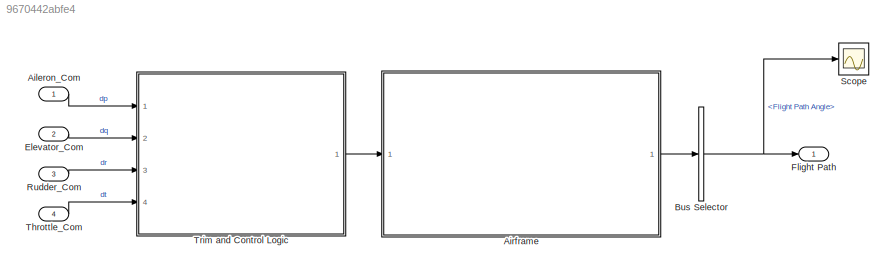
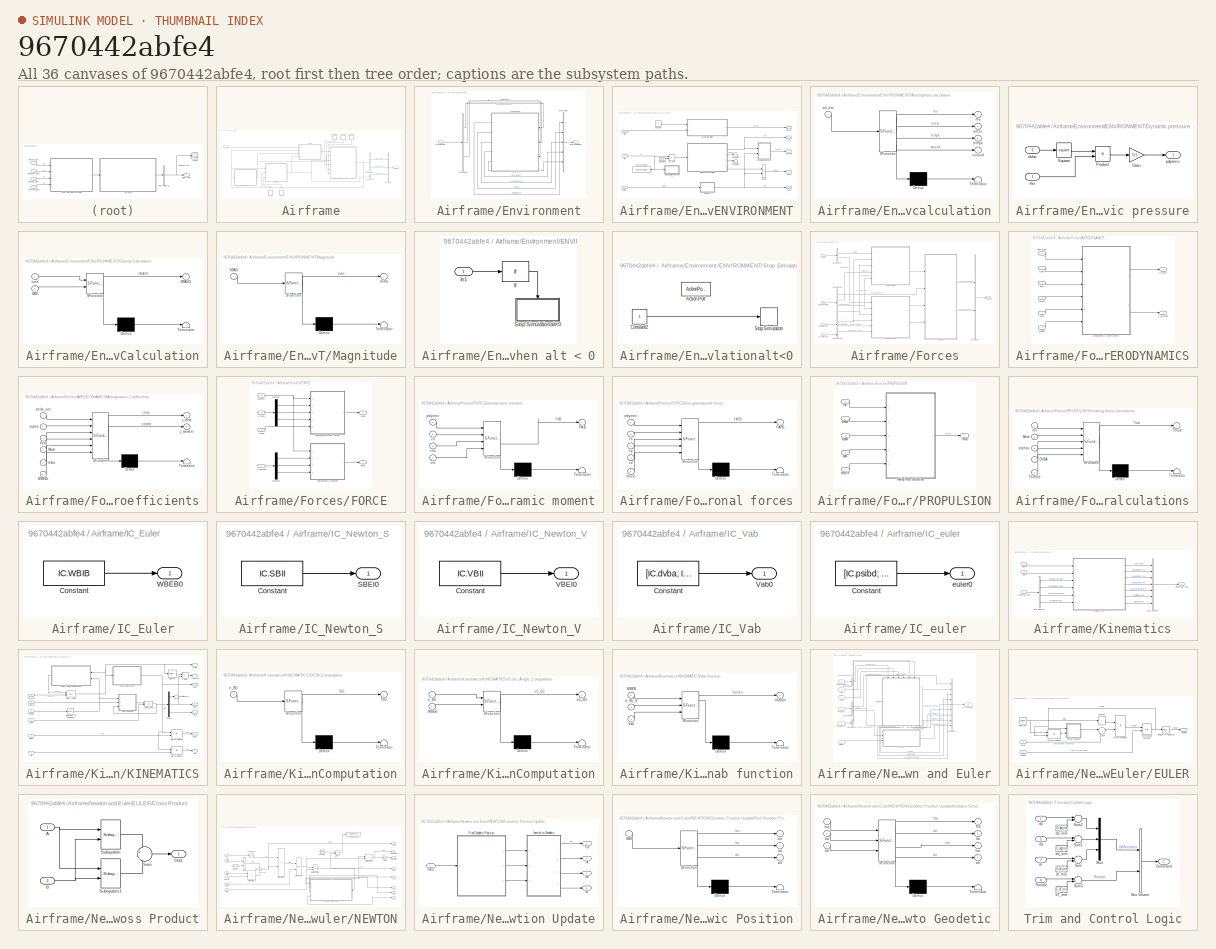
[diagram: thumbnail index - all 36 canvases of the model, root first then tree order]
MODEL slx_9670442abfe4
KIND model
CONFIG AbsTol = auto
CONFIG EnableMultiTasking = off
CONFIG FixedStep = 0.01
CONFIG MaxStep = auto
CONFIG MinStep = auto
CONFIG RelTol = 1e-3
CONFIG SampleTimeConstraint = Unconstrained
CONFIG Solver = ode4
CONFIG SolverName = ode4
CONFIG StartTime = 0.0
CONFIG StopTime = 30
BLOCK [Inport] Aileron_Com
  OutDataTypeStr = double
BLOCK [SubSystem] Airframe
  Ports = [1, 1]
BLOCK [BusCreator] Airframe/Bus Creator
  DisplayOption = bar
  InheritFromInputs = on
  Inputs = 3
  Ports = [3, 1]
BLOCK [BusSelector] Airframe/Bus Selector
  OutputSignals = Inertial Acceleration (FRD),Earth Relative Angular Rate (FRD)
  Ports = [1, 2]
BLOCK [BusSelector] Airframe/Bus Selector1
  OutputSignals = Flight Path Angle
  Ports = [1, 1]
BLOCK [SubSystem] Airframe/Environment
  Ports = [1, 1]
BLOCK [BusCreator] Airframe/Environment/Bus Creator
  DisplayOption = bar
  InheritFromInputs = on
  Inputs = 5
  Ports = [5, 1]
BLOCK [BusSelector] Airframe/Environment/Bus Selector
  OutputSignals = Geogrpahic Velocity [NED],Geodetic Altitude,Inertial Position
  Ports = [1, 3]
BLOCK [Inport] Airframe/Environment/Dynamics Bus
BLOCK [SubSystem] Airframe/Environment/ENVIRONMENT
  Ports = [3, 5]
BLOCK [SubSystem] Airframe/Environment/ENVIRONMENT/Atmosphere calculation
  ErrorFcn = Stateflow.Translate.translate
  PermitHierarchicalResolution = ExplicitOnly
  Ports = [1, 4]
  Priority = 2
  SFBlockType = MATLAB Function
  TreatAsAtomicUnit = on
BLOCK [Demux] Airframe/Environment/ENVIRONMENT/Atmosphere calculation/ Demux 
  Outputs = 1
  Ports = [1, 1]
BLOCK [S-Function] Airframe/Environment/ENVIRONMENT/Atmosphere calculation/ SFunction 
  EnableBusSupport = on
  FunctionName = sf_sfun
  PortCounts = [1 5]
  Ports = [1, 5]
  SFcnIsStateOwnerBlock = off
  SFunctionDeploymentMode = off
  Tag = Stateflow S-Function Trim 18
BLOCK [Terminator] Airframe/Environment/ENVIRONMENT/Atmosphere calculation/ Terminator 
BLOCK [Inport] Airframe/Environment/ENVIRONMENT/Atmosphere calculation/alt_km
BLOCK [Outport] Airframe/Environment/ENVIRONMENT/Atmosphere calculation/press
  Port = 2
BLOCK [Outport] Airframe/Environment/ENVIRONMENT/Atmosphere calculation/rho
BLOCK [Outport] Airframe/Environment/ENVIRONMENT/Atmosphere calculation/tempk
  Port = 3
BLOCK [Outport] Airframe/Environment/ENVIRONMENT/Atmosphere calculation/vsound
  Port = 4
BLOCK [Constant] Airframe/Environment/ENVIRONMENT/Constant
  Value = 0
BLOCK [Constant] Airframe/Environment/ENVIRONMENT/Constant1
  Value = 1000
BLOCK [SubSystem] Airframe/Environment/ENVIRONMENT/Dynamic pressure
  Ports = [2, 1]
BLOCK [Gain] Airframe/Environment/ENVIRONMENT/Dynamic pressure/Gain
  Gain = 0.5
BLOCK [Product] Airframe/Environment/ENVIRONMENT/Dynamic pressure/Product
  Ports = [2, 1]
BLOCK [Math] Airframe/Environment/ENVIRONMENT/Dynamic pressure/Square
  Operator = square
  Ports = [1, 1]
BLOCK [Inport] Airframe/Environment/ENVIRONMENT/Dynamic pressure/dvba
  Port = 2
BLOCK [Outport] Airframe/Environment/ENVIRONMENT/Dynamic pressure/pdynmc
BLOCK [Inport] Airframe/Environment/ENVIRONMENT/Dynamic pressure/rho
BLOCK [Outport] Airframe/Environment/ENVIRONMENT/GRAVG
BLOCK [SubSystem] Airframe/Environment/ENVIRONMENT/Gravity Calculation
  ErrorFcn = Stateflow.Translate.translate
  PermitHierarchicalResolution = ExplicitOnly
  Ports = [2, 1]
  Priority = 1
  SFBlockType = MATLAB Function
  TreatAsAtomicUnit = on
BLOCK [Demux] Airframe/Environment/ENVIRONMENT/Gravity Calculation/ Demux 
  Outputs = 1
  Ports = [1, 1]
BLOCK [S-Function] Airframe/Environment/ENVIRONMENT/Gravity Calculation/ SFunction 
  EnableBusSupport = on
  FunctionName = sf_sfun
  Parameters = Sim
  PortCounts = [2 2]
  Ports = [2, 2]
  SFcnIsStateOwnerBlock = off
  SFunctionDeploymentMode = off
  Tag = Stateflow S-Function Trim 21
BLOCK [Terminator] Airframe/Environment/ENVIRONMENT/Gravity Calculation/ Terminator 
BLOCK [Outport] Airframe/Environment/ENVIRONMENT/Gravity Calculation/GRAVG
BLOCK [Inport] Airframe/Environment/ENVIRONMENT/Gravity Calculation/SBII
  Port = 2
BLOCK [Inport] Airframe/Environment/ENVIRONMENT/Gravity Calculation/time
BLOCK [SubSystem] Airframe/Environment/ENVIRONMENT/Magnitude
  ErrorFcn = Stateflow.Translate.translate
  PermitHierarchicalResolution = ExplicitOnly
  Ports = [1, 1]
  SFBlockType = MATLAB Function
  TreatAsAtomicUnit = on
BLOCK [Demux] Airframe/Environment/ENVIRONMENT/Magnitude/ Demux 
  Outputs = 1
  Ports = [1, 1]
BLOCK [S-Function] Airframe/Environment/ENVIRONMENT/Magnitude/ SFunction 
  EnableBusSupport = on
  FunctionName = sf_sfun
  PortCounts = [1 2]
  Ports = [1, 2]
  SFcnIsStateOwnerBlock = off
  SFunctionDeploymentMode = off
  Tag = Stateflow S-Function Trim 1
BLOCK [Terminator] Airframe/Environment/ENVIRONMENT/Magnitude/ Terminator 
BLOCK [Inport] Airframe/Environment/ENVIRONMENT/Magnitude/VBAD
BLOCK [Outport] Airframe/Environment/ENVIRONMENT/Magnitude/dvba
BLOCK [Inport] Airframe/Environment/ENVIRONMENT/SBII
  Port = 3
BLOCK [SubSystem] Airframe/Environment/ENVIRONMENT/Stop Simulation when alt < 0
  Ports = [1]
BLOCK [If] Airframe/Environment/ENVIRONMENT/Stop Simulation when alt < 0/If
  IfExpression = u1 <= 25
  Ports = [1, 1]
  ShowElse = off
BLOCK [Inport] Airframe/Environment/ENVIRONMENT/Stop Simulation when alt < 0/In1
BLOCK [SubSystem] Airframe/Environment/ENVIRONMENT/Stop Simulation when alt < 0/Stop Simulationalt<0
  Ports = [0, 0, 0, 0, 0, 0, 0, 1]
  TreatAsAtomicUnit = on
BLOCK [ActionPort] Airframe/Environment/ENVIRONMENT/Stop Simulation when alt < 0/Stop Simulationalt<0/Action Port
BLOCK [Constant] Airframe/Environment/ENVIRONMENT/Stop Simulation when alt < 0/Stop Simulationalt<0/Constant2
BLOCK [Stop] Airframe/Environment/ENVIRONMENT/Stop Simulation when alt < 0/Stop Simulationalt<0/Stop Simulation
BLOCK [Terminator] Airframe/Environment/ENVIRONMENT/Terminator
BLOCK [Terminator] Airframe/Environment/ENVIRONMENT/Terminator2
BLOCK [ToWorkspace] Airframe/Environment/ENVIRONMENT/To Workspace
  FixptAsFi = on
  MaxDataPoints = inf
  Ports = [1]
  SampleTime = -1
  VariableName = h
BLOCK [Inport] Airframe/Environment/ENVIRONMENT/VBED
BLOCK [Inport] Airframe/Environment/ENVIRONMENT/alt
  Port = 2
BLOCK [Outport] Airframe/Environment/ENVIRONMENT/dvba
  Port = 5
BLOCK [Product] Airframe/Environment/ENVIRONMENT/dvba//a
  Inputs = /*
  Ports = [2, 1]
BLOCK [Product] Airframe/Environment/ENVIRONMENT/m --> km
  Inputs = */
  Ports = [2, 1]
BLOCK [Outport] Airframe/Environment/ENVIRONMENT/pdynmc
  Port = 3
BLOCK [Outport] Airframe/Environment/ENVIRONMENT/rho
  Port = 2
BLOCK [Outport] Airframe/Environment/ENVIRONMENT/vmach
  Port = 4
BLOCK [Outport] Airframe/Environment/Environment Bus
BLOCK [SubSystem] Airframe/Forces
  Ports = [4, 1]
BLOCK [SubSystem] Airframe/Forces/AERODYNAMICS
  Ports = [6, 2]
BLOCK [SubSystem] Airframe/Forces/AERODYNAMICS/Aerodynamic Coefficients
  ErrorFcn = Stateflow.Translate.translate
  PermitHierarchicalResolution = ExplicitOnly
  Ports = [6, 2]
  SFBlockType = MATLAB Function
  TreatAsAtomicUnit = on
BLOCK [Demux] Airframe/Forces/AERODYNAMICS/Aerodynamic Coefficients/ Demux 
  Outputs = 1
  Ports = [1, 1]
BLOCK [S-Function] Airframe/Forces/AERODYNAMICS/Aerodynamic Coefficients/ SFunction 
  EnableBusSupport = on
  FunctionName = sf_sfun
  Parameters = Data,Sim
  PortCounts = [6 3]
  Ports = [6, 3]
  SFcnIsStateOwnerBlock = off
  SFunctionDeploymentMode = off
  Tag = Stateflow S-Function Trim 25
BLOCK [Terminator] Airframe/Forces/AERODYNAMICS/Aerodynamic Coefficients/ Terminator 
BLOCK [Inport] Airframe/Forces/AERODYNAMICS/Aerodynamic Coefficients/Mach
  Port = 4
BLOCK [Inport] Airframe/Forces/AERODYNAMICS/Aerodynamic Coefficients/WBEBx
  Port = 6
BLOCK [Inport] Airframe/Forces/AERODYNAMICS/Aerodynamic Coefficients/alpha
  Port = 2
BLOCK [Inport] Airframe/Forces/AERODYNAMICS/Aerodynamic Coefficients/beta
  Port = 3
BLOCK [Outport] Airframe/Forces/AERODYNAMICS/Aerodynamic Coefficients/c_force
BLOCK [Outport] Airframe/Forces/AERODYNAMICS/Aerodynamic Coefficients/c_moment
  Port = 2
BLOCK [Inport] Airframe/Forces/AERODYNAMICS/Aerodynamic Coefficients/delta_aer
BLOCK [Inport] Airframe/Forces/AERODYNAMICS/Aerodynamic Coefficients/dvba
  Port = 5
BLOCK [Inport] Airframe/Forces/AERODYNAMICS/WBEBx
  Port = 6
BLOCK [Inport] Airframe/Forces/AERODYNAMICS/alpha
  Port = 4
BLOCK [Inport] Airframe/Forces/AERODYNAMICS/beta
  Port = 5
BLOCK [Outport] Airframe/Forces/AERODYNAMICS/c_force
  PortDimensions = [3 1]
  VarSizeSig = No
BLOCK [Outport] Airframe/Forces/AERODYNAMICS/c_moment
  Port = 2
  PortDimensions = [3 1]
  VarSizeSig = No
BLOCK [Inport] Airframe/Forces/AERODYNAMICS/delta_aer
BLOCK [Inport] Airframe/Forces/AERODYNAMICS/dvba
  Port = 3
BLOCK [Inport] Airframe/Forces/AERODYNAMICS/vmach
  Port = 2
BLOCK [BusCreator] Airframe/Forces/Bus Creator
  DisplayOption = bar
  InheritFromInputs = on
  Inputs = 2
  Ports = [2, 1]
BLOCK [BusSelector] Airframe/Forces/Bus Selector
  OutputSignals = Throttle,Deflections
  Ports = [1, 2]
BLOCK [BusSelector] Airframe/Forces/Bus Selector1
  OutputSignals = Dynamic Pressure,Air Density,Mach Number,True Airspeed
  Ports = [1, 4]
BLOCK [BusSelector] Airframe/Forces/Bus Selector2
  OutputSignals = Earth Relative Angular Rate (FRD)
  Ports = [1, 1]
BLOCK [BusSelector] Airframe/Forces/Bus Selector3
  OutputSignals = Angle of Attack (rad),Side slip angle (rad)
  Ports = [1, 2]
BLOCK [Inport] Airframe/Forces/Dynamics Bus
  Port = 2
BLOCK [Inport] Airframe/Forces/Environment Bus
  Port = 3
BLOCK [SubSystem] Airframe/Forces/FORCE
  Ports = [4, 2]
BLOCK [Demux] Airframe/Forces/FORCE/Demux
  Outputs = 3
  Ports = [1, 3]
BLOCK [Demux] Airframe/Forces/FORCE/Demux1
  Outputs = 3
  Ports = [1, 3]
BLOCK [Outport] Airframe/Forces/FORCE/FAPB
  Port = 2
BLOCK [Outport] Airframe/Forces/FORCE/FMB
BLOCK [SubSystem] Airframe/Forces/FORCE/aerodynamic moment
  ErrorFcn = Stateflow.Translate.translate
  PermitHierarchicalResolution = ExplicitOnly
  Ports = [4, 1]
  SFBlockType = MATLAB Function
  TreatAsAtomicUnit = on
BLOCK [Demux] Airframe/Forces/FORCE/aerodynamic moment/ Demux 
  Outputs = 1
  Ports = [1, 1]
BLOCK [S-Function] Airframe/Forces/FORCE/aerodynamic moment/ SFunction 
  EnableBusSupport = on
  FunctionName = sf_sfun
  Parameters = Sim
  PortCounts = [4 2]
  Ports = [4, 2]
  SFcnIsStateOwnerBlock = off
  SFunctionDeploymentMode = off
  Tag = Stateflow S-Function Trim 26
BLOCK [Terminator] Airframe/Forces/FORCE/aerodynamic moment/ Terminator 
BLOCK [Outport] Airframe/Forces/FORCE/aerodynamic moment/FMB
BLOCK [Inport] Airframe/Forces/FORCE/aerodynamic moment/cll
  Port = 2
BLOCK [Inport] Airframe/Forces/FORCE/aerodynamic moment/clm
  Port = 3
BLOCK [Inport] Airframe/Forces/FORCE/aerodynamic moment/cln
  Port = 4
BLOCK [Inport] Airframe/Forces/FORCE/aerodynamic moment/pdynmc
BLOCK [Inport] Airframe/Forces/FORCE/c_force
  Port = 3
  PortDimensions = [3 1]
  VarSizeSig = No
BLOCK [Inport] Airframe/Forces/FORCE/c_moment
  Port = 4
  PortDimensions = [3 1]
  VarSizeSig = No
BLOCK [SubSystem] Airframe/Forces/FORCE/non-gravitational forces
  ErrorFcn = Stateflow.Translate.translate
  PermitHierarchicalResolution = ExplicitOnly
  Ports = [5, 1]
  SFBlockType = MATLAB Function
  TreatAsAtomicUnit = on
BLOCK [Demux] Airframe/Forces/FORCE/non-gravitational forces/ Demux 
  Outputs = 1
  Ports = [1, 1]
BLOCK [S-Function] Airframe/Forces/FORCE/non-gravitational forces/ SFunction 
  EnableBusSupport = on
  FunctionName = sf_sfun
  Parameters = Sim
  PortCounts = [5 2]
  Ports = [5, 2]
  SFcnIsStateOwnerBlock = off
  SFunctionDeploymentMode = off
  Tag = Stateflow S-Function Trim 27
BLOCK [Terminator] Airframe/Forces/FORCE/non-gravitational forces/ Terminator 
BLOCK [Outport] Airframe/Forces/FORCE/non-gravitational forces/FAPB
BLOCK [Inport] Airframe/Forces/FORCE/non-gravitational forces/cx
  Port = 2
BLOCK [Inport] Airframe/Forces/FORCE/non-gravitational forces/cy
  Port = 3
BLOCK [Inport] Airframe/Forces/FORCE/non-gravitational forces/cz
  Port = 4
BLOCK [Inport] Airframe/Forces/FORCE/non-gravitational forces/pdynmc
BLOCK [Inport] Airframe/Forces/FORCE/non-gravitational forces/thrust
  Port = 5
BLOCK [Inport] Airframe/Forces/FORCE/pdynmc
  Port = 2
BLOCK [Inport] Airframe/Forces/FORCE/thrust
BLOCK [Outport] Airframe/Forces/Force Bus
BLOCK [Inport] Airframe/Forces/Input Bus
BLOCK [Inport] Airframe/Forces/Kinematics Bus
  Port = 4
BLOCK [SubSystem] Airframe/Forces/PROPULSION
  Ports = [5, 1]
BLOCK [Inport] Airframe/Forces/PROPULSION/alphax
  Port = 2
BLOCK [Inport] Airframe/Forces/PROPULSION/dvba
  Port = 3
BLOCK [SubSystem] Airframe/Forces/PROPULSION/making thrust calculations
  ErrorFcn = Stateflow.Translate.translate
  PermitHierarchicalResolution = ExplicitOnly
  Ports = [5, 1]
  SFBlockType = MATLAB Function
  TreatAsAtomicUnit = on
BLOCK [Demux] Airframe/Forces/PROPULSION/making thrust calculations/ Demux 
  Outputs = 1
  Ports = [1, 1]
BLOCK [S-Function] Airframe/Forces/PROPULSION/making thrust calculations/ SFunction 
  EnableBusSupport = on
  FunctionName = sf_sfun
  Parameters = Data,Sim
  PortCounts = [5 2]
  Ports = [5, 2]
  SFcnIsStateOwnerBlock = off
  SFunctionDeploymentMode = off
  Tag = Stateflow S-Function Trim 28
BLOCK [Terminator] Airframe/Forces/PROPULSION/making thrust calculations/ Terminator 
BLOCK [Inport] Airframe/Forces/PROPULSION/making thrust calculations/DVBA
  Port = 4
BLOCK [Inport] Airframe/Forces/PROPULSION/making thrust calculations/Mach
  Port = 2
BLOCK [Inport] Airframe/Forces/PROPULSION/making thrust calculations/Throttle
  Port = 5
BLOCK [Outport] Airframe/Forces/PROPULSION/making thrust calculations/Thrust
BLOCK [Inport] Airframe/Forces/PROPULSION/making thrust calculations/alphax
  Port = 3
BLOCK [Inport] Airframe/Forces/PROPULSION/making thrust calculations/rho
BLOCK [Inport] Airframe/Forces/PROPULSION/rho
  Port = 4
BLOCK [Inport] Airframe/Forces/PROPULSION/throttle
BLOCK [Outport] Airframe/Forces/PROPULSION/thrust
BLOCK [Inport] Airframe/Forces/PROPULSION/vmach
  Port = 5
BLOCK [SubSystem] Airframe/IC_Euler
  Ports = [0, 1]
BLOCK [Constant] Airframe/IC_Euler/Constant
  SampleTime = Sim.sample_time
  Value = IC.WBIB
BLOCK [Outport] Airframe/IC_Euler/WBEB0
BLOCK [SubSystem] Airframe/IC_Newton_S
  Ports = [0, 1]
BLOCK [Constant] Airframe/IC_Newton_S/Constant
  SampleTime = Sim.sample_time
  Value = IC.SBII
BLOCK [Outport] Airframe/IC_Newton_S/SBEI0
BLOCK [SubSystem] Airframe/IC_Newton_V
  Ports = [0, 1]
BLOCK [Constant] Airframe/IC_Newton_V/Constant
  SampleTime = Sim.sample_time
  Value = IC.VBII
BLOCK [Outport] Airframe/IC_Newton_V/VBEI0
BLOCK [SubSystem] Airframe/IC_Vab
  Ports = [0, 1]
BLOCK [Constant] Airframe/IC_Vab/Constant
  SampleTime = Sim.sample_time
  Value = [IC.dvba; IC.alpha; 0]
  VectorParams1D = off
BLOCK [Outport] Airframe/IC_Vab/Vab0
BLOCK [SubSystem] Airframe/IC_euler
  Ports = [0, 1]
BLOCK [Constant] Airframe/IC_euler/Constant
  SampleTime = Sim.sample_time
  Value = [IC.psibd; IC.thtbd; IC.phibd]
  VectorParams1D = off
BLOCK [Outport] Airframe/IC_euler/euler0
BLOCK [Inport] Airframe/Input Bus
BLOCK [SubSystem] Airframe/Kinematics
  Ports = [3, 1]
BLOCK [BusCreator] Airframe/Kinematics/Bus Creator
  DisplayOption = bar
  InheritFromInputs = on
  Inputs = 7
  Ports = [7, 1]
BLOCK [BusSelector] Airframe/Kinematics/Bus Selector
  OutputSignals = Inertial Acceleration (FRD),Earth Relative Angular Rate (FRD),Geogrpahic Velocity [NED],Inertial to Geodetic TM
  Ports = [1, 4]
BLOCK [Inport] Airframe/Kinematics/Dynamics Bus
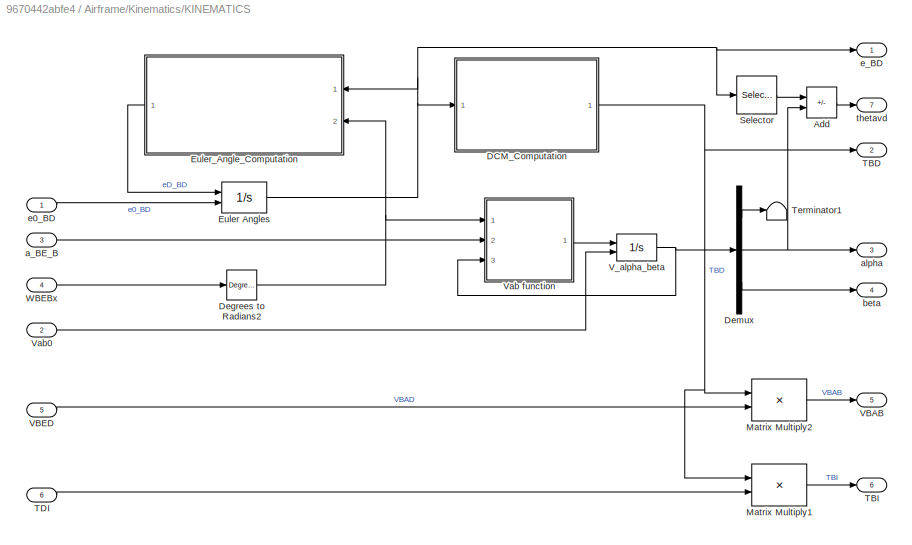
BLOCK [SubSystem] Airframe/Kinematics/KINEMATICS
  Ports = [6, 7]
BLOCK [Sum] Airframe/Kinematics/KINEMATICS/Add
  IconShape = rectangular
  Inputs = +-
  Ports = [2, 1]
BLOCK [SubSystem] Airframe/Kinematics/KINEMATICS/DCM_Computation
  ErrorFcn = Stateflow.Translate.translate
  PermitHierarchicalResolution = ExplicitOnly
  Ports = [1, 1]
  SFBlockType = MATLAB Function
  TreatAsAtomicUnit = on
BLOCK [Demux] Airframe/Kinematics/KINEMATICS/DCM_Computation/ Demux 
  Outputs = 1
  Ports = [1, 1]
BLOCK [S-Function] Airframe/Kinematics/KINEMATICS/DCM_Computation/ SFunction 
  EnableBusSupport = on
  FunctionName = sf_sfun
  PortCounts = [1 2]
  Ports = [1, 2]
  SFcnIsStateOwnerBlock = off
  SFunctionDeploymentMode = off
  Tag = Stateflow S-Function Trim 22
BLOCK [Terminator] Airframe/Kinematics/KINEMATICS/DCM_Computation/ Terminator 
BLOCK [Outport] Airframe/Kinematics/KINEMATICS/DCM_Computation/TBD
  VectorParamsAs1DForOutWhenUnconnected = off
BLOCK [Inport] Airframe/Kinematics/KINEMATICS/DCM_Computation/e_BD
BLOCK [Reference] Airframe/Kinematics/KINEMATICS/Degrees to Radians2  REF=simulink_extras/Transformations/Degrees to
Radians
  Ports = [1, 1]
  SourceBlock = simulink_extras/Transformations/Degrees to\nRadians
  SourceType = DegreesToRadians
BLOCK [Demux] Airframe/Kinematics/KINEMATICS/Demux
  Outputs = 3
  Ports = [1, 3]
BLOCK [Integrator] Airframe/Kinematics/KINEMATICS/Euler Angles
  InitialConditionSource = external
  Ports = [2, 1]
BLOCK [SubSystem] Airframe/Kinematics/KINEMATICS/Euler_Angle_Computation
  ErrorFcn = Stateflow.Translate.translate
  PermitHierarchicalResolution = ExplicitOnly
  Ports = [2, 1]
  SFBlockType = MATLAB Function
  TreatAsAtomicUnit = on
BLOCK [Demux] Airframe/Kinematics/KINEMATICS/Euler_Angle_Computation/ Demux 
  Outputs = 1
  Ports = [1, 1]
BLOCK [S-Function] Airframe/Kinematics/KINEMATICS/Euler_Angle_Computation/ SFunction 
  EnableBusSupport = on
  FunctionName = sf_sfun
  PortCounts = [2 2]
  Ports = [2, 2]
  SFcnIsStateOwnerBlock = off
  SFunctionDeploymentMode = off
  Tag = Stateflow S-Function Trim 23
BLOCK [Terminator] Airframe/Kinematics/KINEMATICS/Euler_Angle_Computation/ Terminator 
BLOCK [Inport] Airframe/Kinematics/KINEMATICS/Euler_Angle_Computation/WBEB
  Port = 2
BLOCK [Outport] Airframe/Kinematics/KINEMATICS/Euler_Angle_Computation/eD_BD
  VectorParamsAs1DForOutWhenUnconnected = off
BLOCK [Inport] Airframe/Kinematics/KINEMATICS/Euler_Angle_Computation/e_BD
BLOCK [Product] Airframe/Kinematics/KINEMATICS/Matrix Multiply1
  Multiplication = Matrix(*)
  Ports = [2, 1]
BLOCK [Product] Airframe/Kinematics/KINEMATICS/Matrix Multiply2
  Multiplication = Matrix(*)
  Ports = [2, 1]
BLOCK [Selector] Airframe/Kinematics/KINEMATICS/Selector
  IndexOptions = Index vector (dialog)
  Indices = [2]
  InputPortWidth = 3
  OutputSizes = 1
  Ports = [1, 1]
BLOCK [Outport] Airframe/Kinematics/KINEMATICS/TBD
  Port = 2
BLOCK [Outport] Airframe/Kinematics/KINEMATICS/TBI
  Port = 6
BLOCK [Inport] Airframe/Kinematics/KINEMATICS/TDI
  Port = 6
BLOCK [Terminator] Airframe/Kinematics/KINEMATICS/Terminator1
BLOCK [Outport] Airframe/Kinematics/KINEMATICS/VBAB
  Port = 5
BLOCK [Inport] Airframe/Kinematics/KINEMATICS/VBED
  Port = 5
BLOCK [Integrator] Airframe/Kinematics/KINEMATICS/V_alpha_beta
  InitialConditionSource = external
  Ports = [2, 1]
BLOCK [SubSystem] Airframe/Kinematics/KINEMATICS/Vab function
  ErrorFcn = Stateflow.Translate.translate
  PermitHierarchicalResolution = ExplicitOnly
  Ports = [3, 1]
  SFBlockType = MATLAB Function
  TreatAsAtomicUnit = on
BLOCK [Demux] Airframe/Kinematics/KINEMATICS/Vab function/ Demux 
  Outputs = 1
  Ports = [1, 1]
BLOCK [S-Function] Airframe/Kinematics/KINEMATICS/Vab function/ SFunction 
  EnableBusSupport = on
  FunctionName = sf_sfun
  PortCounts = [3 2]
  Ports = [3, 2]
  SFcnIsStateOwnerBlock = off
  SFunctionDeploymentMode = off
  Tag = Stateflow S-Function Trim 24
BLOCK [Terminator] Airframe/Kinematics/KINEMATICS/Vab function/ Terminator 
BLOCK [Inport] Airframe/Kinematics/KINEMATICS/Vab function/Vab
  Port = 3
BLOCK [Outport] Airframe/Kinematics/KINEMATICS/Vab function/Vabdot
BLOCK [Inport] Airframe/Kinematics/KINEMATICS/Vab function/WBEB
BLOCK [Inport] Airframe/Kinematics/KINEMATICS/Vab function/a_BE_B
  Port = 2
BLOCK [Inport] Airframe/Kinematics/KINEMATICS/Vab0
  Port = 2
BLOCK [Inport] Airframe/Kinematics/KINEMATICS/WBEBx
  Port = 4
BLOCK [Inport] Airframe/Kinematics/KINEMATICS/a_BE_B
  Port = 3
BLOCK [Outport] Airframe/Kinematics/KINEMATICS/alpha
  Port = 3
BLOCK [Outport] Airframe/Kinematics/KINEMATICS/beta
  Port = 4
BLOCK [Inport] Airframe/Kinematics/KINEMATICS/e0_BD
BLOCK [Outport] Airframe/Kinematics/KINEMATICS/e_BD
BLOCK [Outport] Airframe/Kinematics/KINEMATICS/thetavd
  Port = 7
BLOCK [Outport] Airframe/Kinematics/Kinematics Bus
BLOCK [Inport] Airframe/Kinematics/Vab0
  Port = 2
BLOCK [Inport] Airframe/Kinematics/euler0
  Port = 3
BLOCK [SubSystem] Airframe/Newton and Euler
  Ports = [6, 1]
BLOCK [BusCreator] Airframe/Newton and Euler/Bus Creator
  DisplayOption = bar
  InheritFromInputs = on
  Inputs = 9
  Ports = [9, 1]
BLOCK [BusSelector] Airframe/Newton and Euler/Bus Selector
  OutputSignals = Geodetic to Body TM,Inertial to Body TM
  Ports = [1, 2]
BLOCK [BusSelector] Airframe/Newton and Euler/Bus Selector1
  OutputSignals = Aero-propulsive Forces,Aerodynamic Moments
  Ports = [1, 2]
BLOCK [BusSelector] Airframe/Newton and Euler/Bus Selector2
  OutputSignals = Gravitation (NED)
  Ports = [1, 1]
BLOCK [Outport] Airframe/Newton and Euler/Dynamics Bus
BLOCK [SubSystem] Airframe/Newton and Euler/EULER
  Ports = [2, 1]
BLOCK [Constant] Airframe/Newton and Euler/EULER/Constant1
  Value = IC.IBBBr
BLOCK [SubSystem] Airframe/Newton and Euler/EULER/Cross Product
  Ports = [2, 1]
BLOCK [Inport] Airframe/Newton and Euler/EULER/Cross Product/A
BLOCK [Inport] Airframe/Newton and Euler/EULER/Cross Product/B
  Port = 2
BLOCK [Outport] Airframe/Newton and Euler/EULER/Cross Product/Out1
BLOCK [Reference] Airframe/Newton and Euler/EULER/Cross Product/Subsystem  REF=sharedutil/3x3 Cross Product/Subsystem
  Ports = [2, 1]
  SourceBlock = sharedutil/3x3 Cross Product/Subsystem
  SourceType = SubSystem
BLOCK [Reference] Airframe/Newton and Euler/EULER/Cross Product/Subsystem1  REF=sharedutil/3x3 Cross Product/Subsystem1
  Ports = [2, 1]
  SourceBlock = sharedutil/3x3 Cross Product/Subsystem1
  SourceType = SubSystem
BLOCK [Sum] Airframe/Newton and Euler/EULER/Cross Product/Sum
  InputSameDT = on
  Inputs = +|-
  OutDataTypeStr = Inherit: Same as first input
  Ports = [2, 1]
  SaturateOnIntegerOverflow = on
BLOCK [Inport] Airframe/Newton and Euler/EULER/FMB
BLOCK [Integrator] Airframe/Newton and Euler/EULER/Inertial Body Rotation
  InitialCondition = v0_BE_B
  InitialConditionSource = external
  Ports = [2, 1]
BLOCK [Product] Airframe/Newton and Euler/EULER/Matrix Multiply
  Multiplication = Matrix(*)
  Ports = [2, 1]
BLOCK [Product] Airframe/Newton and Euler/EULER/Matrix Multiply2
  Multiplication = Matrix(*)
  Ports = [2, 1]
BLOCK [Product] Airframe/Newton and Euler/EULER/Product
  Inputs = /
  Multiplication = Matrix(*)
  OutDataTypeStr = Inherit: Same as first input
  Ports = [1, 1]
  SaturateOnIntegerOverflow = on
BLOCK [Reference] Airframe/Newton and Euler/EULER/Radians to Degrees  REF=simulink_extras/Transformations/Radians
to Degrees
  Ports = [1, 1]
  SourceBlock = simulink_extras/Transformations/Radians\nto Degrees
  SourceType = RadiansToDegrees
BLOCK [Sum] Airframe/Newton and Euler/EULER/Sum
  Inputs = |-+
  Ports = [2, 1]
BLOCK [Inport] Airframe/Newton and Euler/EULER/WBEB0
  Port = 2
BLOCK [Outport] Airframe/Newton and Euler/EULER/WBEBx
BLOCK [Inport] Airframe/Newton and Euler/Environment Bus
  Port = 2
BLOCK [Inport] Airframe/Newton and Euler/Force Bus
BLOCK [Inport] Airframe/Newton and Euler/Kinematics Bus
  Port = 3
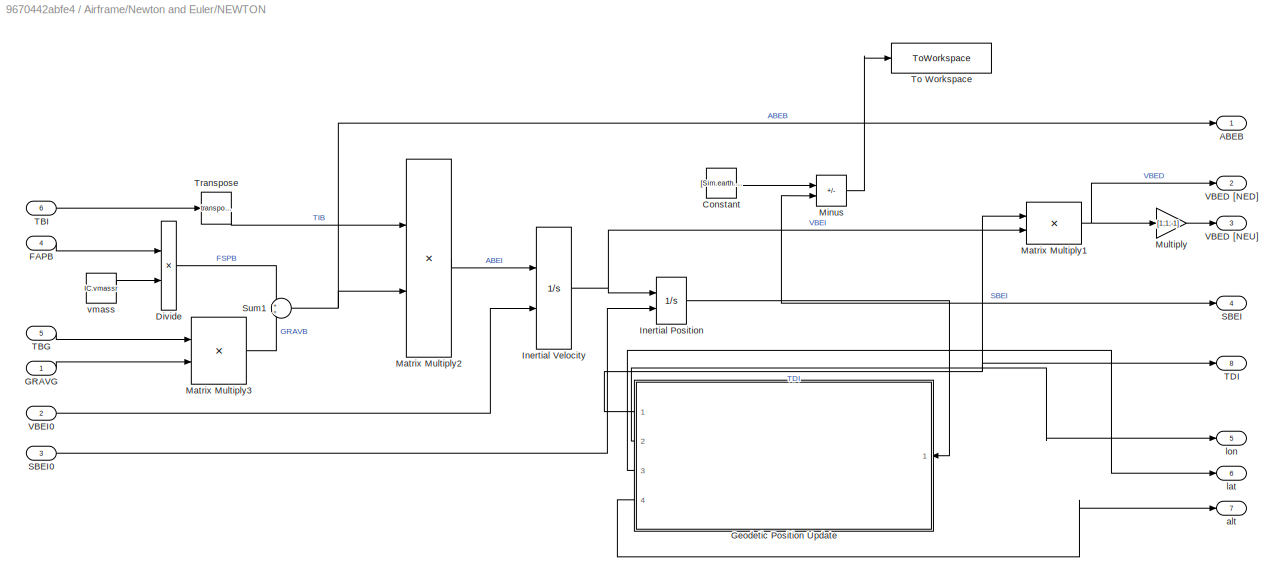
BLOCK [SubSystem] Airframe/Newton and Euler/NEWTON
  Ports = [6, 8]
BLOCK [Outport] Airframe/Newton and Euler/NEWTON/ABEB
BLOCK [Constant] Airframe/Newton and Euler/NEWTON/Constant
  SampleTime = Sim.sample_time
  Value = [Sim.earth.REARTH; 0;0]
BLOCK [Product] Airframe/Newton and Euler/NEWTON/Divide
  Inputs = */
  Ports = [2, 1]
BLOCK [Inport] Airframe/Newton and Euler/NEWTON/FAPB
  Port = 4
BLOCK [Inport] Airframe/Newton and Euler/NEWTON/GRAVG
BLOCK [SubSystem] Airframe/Newton and Euler/NEWTON/Geodetic Position Update
  Ports = [1, 4]
BLOCK [SubSystem] Airframe/Newton and Euler/NEWTON/Geodetic Position Update/Find Geodetic Position
  ErrorFcn = Stateflow.Translate.translate
  PermitHierarchicalResolution = ExplicitOnly
  Ports = [1, 3]
  SFBlockType = MATLAB Function
  TreatAsAtomicUnit = on
BLOCK [Demux] Airframe/Newton and Euler/NEWTON/Geodetic Position Update/Find Geodetic Position/ Demux 
  Outputs = 1
  Ports = [1, 1]
BLOCK [S-Function] Airframe/Newton and Euler/NEWTON/Geodetic Position Update/Find Geodetic Position/ SFunction 
  EnableBusSupport = on
  FunctionName = sf_sfun
  Parameters = Sim
  PortCounts = [1 4]
  Ports = [1, 4]
  SFcnIsStateOwnerBlock = off
  SFunctionDeploymentMode = off
  Tag = Stateflow S-Function Trim 2
BLOCK [Terminator] Airframe/Newton and Euler/NEWTON/Geodetic Position Update/Find Geodetic Position/ Terminator 
BLOCK [Inport] Airframe/Newton and Euler/NEWTON/Geodetic Position Update/Find Geodetic Position/SBII
BLOCK [Outport] Airframe/Newton and Euler/NEWTON/Geodetic Position Update/Find Geodetic Position/alt
  Port = 3
BLOCK [Outport] Airframe/Newton and Euler/NEWTON/Geodetic Position Update/Find Geodetic Position/lat
  Port = 2
BLOCK [Outport] Airframe/Newton and Euler/NEWTON/Geodetic Position Update/Find Geodetic Position/lon
BLOCK [SubSystem] Airframe/Newton and Euler/NEWTON/Geodetic Position Update/Inertial to Geodetic
  ErrorFcn = Stateflow.Translate.translate
  PermitHierarchicalResolution = ExplicitOnly
  Ports = [3, 4]
  SFBlockType = MATLAB Function
  TreatAsAtomicUnit = on
BLOCK [Demux] Airframe/Newton and Euler/NEWTON/Geodetic Position Update/Inertial to Geodetic/ Demux 
  Outputs = 1
  Ports = [1, 1]
BLOCK [S-Function] Airframe/Newton and Euler/NEWTON/Geodetic Position Update/Inertial to Geodetic/ SFunction 
  EnableBusSupport = on
  FunctionName = sf_sfun
  Parameters = Sim
  PortCounts = [3 5]
  Ports = [3, 5]
  SFcnIsStateOwnerBlock = off
  SFunctionDeploymentMode = off
  Tag = Stateflow S-Function Trim 17
BLOCK [Terminator] Airframe/Newton and Euler/NEWTON/Geodetic Position Update/Inertial to Geodetic/ Terminator 
BLOCK [Outport] Airframe/Newton and Euler/NEWTON/Geodetic Position Update/Inertial to Geodetic/TDI
BLOCK [Outport] Airframe/Newton and Euler/NEWTON/Geodetic Position Update/Inertial to Geodetic/alt
  Port = 4
BLOCK [Inport] Airframe/Newton and Euler/NEWTON/Geodetic Position Update/Inertial to Geodetic/alt 
  Port = 3
BLOCK [Outport] Airframe/Newton and Euler/NEWTON/Geodetic Position Update/Inertial to Geodetic/lat
  Port = 2
BLOCK [Inport] Airframe/Newton and Euler/NEWTON/Geodetic Position Update/Inertial to Geodetic/lat 
  Port = 2
BLOCK [Outport] Airframe/Newton and Euler/NEWTON/Geodetic Position Update/Inertial to Geodetic/lon
  Port = 3
BLOCK [Inport] Airframe/Newton and Euler/NEWTON/Geodetic Position Update/Inertial to Geodetic/lon 
BLOCK [Inport] Airframe/Newton and Euler/NEWTON/Geodetic Position Update/SBEI
BLOCK [Outport] Airframe/Newton and Euler/NEWTON/Geodetic Position Update/TDI
BLOCK [Outport] Airframe/Newton and Euler/NEWTON/Geodetic Position Update/alt
  Port = 4
BLOCK [Outport] Airframe/Newton and Euler/NEWTON/Geodetic Position Update/lat
  Port = 3
BLOCK [Outport] Airframe/Newton and Euler/NEWTON/Geodetic Position Update/lon
  Port = 2
BLOCK [Integrator] Airframe/Newton and Euler/NEWTON/Inertial Position
  InitialConditionSource = external
  Ports = [2, 1]
BLOCK [Integrator] Airframe/Newton and Euler/NEWTON/Inertial Velocity
  InitialCondition = v0_BE_B
  InitialConditionSource = external
  Ports = [2, 1]
BLOCK [Product] Airframe/Newton and Euler/NEWTON/Matrix Multiply1
  Multiplication = Matrix(*)
  Ports = [2, 1]
BLOCK [Product] Airframe/Newton and Euler/NEWTON/Matrix Multiply2
  Multiplication = Matrix(*)
  Ports = [2, 1]
BLOCK [Product] Airframe/Newton and Euler/NEWTON/Matrix Multiply3
  Multiplication = Matrix(*)
  Ports = [2, 1]
BLOCK [Sum] Airframe/Newton and Euler/NEWTON/Minus
  IconShape = rectangular
  Inputs = -+
  Ports = [2, 1]
BLOCK [Gain] Airframe/Newton and Euler/NEWTON/Multiply
  Gain = [1;1;-1]
BLOCK [Outport] Airframe/Newton and Euler/NEWTON/SBEI 
  Port = 4
BLOCK [Inport] Airframe/Newton and Euler/NEWTON/SBEI0
  Port = 3
BLOCK [Sum] Airframe/Newton and Euler/NEWTON/Sum1
  Ports = [2, 1]
BLOCK [Inport] Airframe/Newton and Euler/NEWTON/TBG
  Port = 5
BLOCK [Inport] Airframe/Newton and Euler/NEWTON/TBI
  Port = 6
BLOCK [Outport] Airframe/Newton and Euler/NEWTON/TDI
  Port = 8
BLOCK [ToWorkspace] Airframe/Newton and Euler/NEWTON/To Workspace
  FixptAsFi = on
  MaxDataPoints = inf
  Ports = [1]
  SampleTime = -1
  SaveFormat = Timeseries
  VariableName = TrimPosition
BLOCK [Math] Airframe/Newton and Euler/NEWTON/Transpose
  Operator = transpose
  Ports = [1, 1]
BLOCK [Outport] Airframe/Newton and Euler/NEWTON/VBED [NED]
  Port = 2
BLOCK [Outport] Airframe/Newton and Euler/NEWTON/VBED [NEU]
  Port = 3
BLOCK [Inport] Airframe/Newton and Euler/NEWTON/VBEI0
  Port = 2
BLOCK [Outport] Airframe/Newton and Euler/NEWTON/alt
  Port = 7
BLOCK [Outport] Airframe/Newton and Euler/NEWTON/lat
  Port = 6
BLOCK [Outport] Airframe/Newton and Euler/NEWTON/lon
  Port = 5
BLOCK [Constant] Airframe/Newton and Euler/NEWTON/vmass
  Value = IC.vmassr
BLOCK [Inport] Airframe/Newton and Euler/SBEI0
  Port = 4
BLOCK [Inport] Airframe/Newton and Euler/VBEI0
  Port = 6
BLOCK [Inport] Airframe/Newton and Euler/WBEB0
  Port = 5
BLOCK [Outport] Airframe/Output Bus
BLOCK [BusSelector] Bus Selector
  OutputSignals = Flight Path Angle
  Ports = [1, 1]
BLOCK [Inport] Elevator_Com
  OutDataTypeStr = double
  Port = 2
BLOCK [Outport] Flight Path
BLOCK [Inport] Rudder_Com
  OutDataTypeStr = double
  Port = 3
BLOCK [Scope] Scope
  Floating = off
  NumInputPorts = 1
  Ports = [1]
  ScopeSpecificationString = Simulink.scopes.TimeScopeBlockCfg('CurrentConfiguration', extmgr.ConfigurationSet(extmgr.Configuration('Core','General UI',true),extmgr.Configuration('Core','Source UI',true),extmgr.Configuration('Sources','WiredSimulink',true),extmgr.Configuration('Visuals','Time Domain',true,'SerializedDisplays',{struct('MinYLimReal','-0.00021','MaxYLimReal','0.00058','YLabelReal','','MinYLimMag','0.00000','MaxY...<+1345ch>
BLOCK [Inport] Throttle_Com
  Port = 4
BLOCK [SubSystem] Trim and Control Logic
  Ports = [4, 1]
BLOCK [BusCreator] Trim and Control Logic/Bus Creator
  DisplayOption = bar
  InheritFromInputs = on
  Inputs = 2
  Ports = [2, 1]
BLOCK [Outport] Trim and Control Logic/Command
BLOCK [Mux] Trim and Control Logic/Mux
  DisplayOption = bar
  Inputs = 3
  Ports = [3, 1]
BLOCK [Sum] Trim and Control Logic/Sum
  Inputs = |++
  Ports = [2, 1]
BLOCK [Sum] Trim and Control Logic/Sum1
  Inputs = |++
  Ports = [2, 1]
BLOCK [Sum] Trim and Control Logic/Sum2
  Inputs = |++
  Ports = [2, 1]
BLOCK [Sum] Trim and Control Logic/Sum3
  Inputs = |++
  Ports = [2, 1]
BLOCK [Inport] Trim and Control Logic/Throttle
  Port = 4
BLOCK [Constant] Trim and Control Logic/dT_trim
  Value = IC.dT_trim
BLOCK [Inport] Trim and Control Logic/dp
BLOCK [Constant] Trim and Control Logic/dp_trim
  Value = IC.dp_trim
BLOCK [Inport] Trim and Control Logic/dq
  Port = 2
BLOCK [Constant] Trim and Control Logic/dq_trim
  Value = IC.dq_trim
BLOCK [Inport] Trim and Control Logic/dr
  Port = 3
BLOCK [Constant] Trim and Control Logic/dr_trim
  Value = IC.dr_trim
LINE Aileron_Com:1 -> Trim and Control Logic:1
LINE Airframe/Bus Creator:1 -> Airframe/Output Bus:1
LINE Airframe/Bus Selector1:1 -> Airframe/Bus Creator:3
LINE Airframe/Bus Selector:1 -> Airframe/Bus Creator:1
LINE Airframe/Bus Selector:2 -> Airframe/Bus Creator:2
LINE Airframe/Environment/Bus Creator:1 -> Airframe/Environment/Environment Bus:1
LINE Airframe/Environment/Bus Selector:1 -> Airframe/Environment/ENVIRONMENT:1
LINE Airframe/Environment/Bus Selector:2 -> Airframe/Environment/ENVIRONMENT:2
LINE Airframe/Environment/Bus Selector:3 -> Airframe/Environment/ENVIRONMENT:3
LINE Airframe/Environment/Dynamics Bus:1 -> Airframe/Environment/Bus Selector:1
NET Airframe/Environment/ENVIRONMENT/Atmosphere calculation:1 -> Airframe/Environment/ENVIRONMENT/Dynamic pressure:1, Airframe/Environment/ENVIRONMENT/rho:1
LINE Airframe/Environment/ENVIRONMENT/Atmosphere calculation:2 -> Airframe/Environment/ENVIRONMENT/Terminator:1
LINE Airframe/Environment/ENVIRONMENT/Atmosphere calculation:3 -> Airframe/Environment/ENVIRONMENT/Terminator2:1
LINE Airframe/Environment/ENVIRONMENT/Atmosphere calculation:4 -> Airframe/Environment/ENVIRONMENT/dvba//a:1
LINE Airframe/Environment/ENVIRONMENT/Constant1:1 -> Airframe/Environment/ENVIRONMENT/m --> km:2
LINE Airframe/Environment/ENVIRONMENT/Constant:1 -> Airframe/Environment/ENVIRONMENT/Gravity Calculation:1
LINE Airframe/Environment/ENVIRONMENT/Dynamic pressure/Gain:1 -> Airframe/Environment/ENVIRONMENT/Dynamic pressure/pdynmc:1
LINE Airframe/Environment/ENVIRONMENT/Dynamic pressure/Product:1 -> Airframe/Environment/ENVIRONMENT/Dynamic pressure/Gain:1
LINE Airframe/Environment/ENVIRONMENT/Dynamic pressure/Square:1 -> Airframe/Environment/ENVIRONMENT/Dynamic pressure/Product:1
LINE Airframe/Environment/ENVIRONMENT/Dynamic pressure/dvba:1 -> Airframe/Environment/ENVIRONMENT/Dynamic pressure/Square:1
LINE Airframe/Environment/ENVIRONMENT/Dynamic pressure/rho:1 -> Airframe/Environment/ENVIRONMENT/Dynamic pressure/Product:2
LINE Airframe/Environment/ENVIRONMENT/Dynamic pressure:1 -> Airframe/Environment/ENVIRONMENT/pdynmc:1
LINE Airframe/Environment/ENVIRONMENT/Gravity Calculation:1 -> Airframe/Environment/ENVIRONMENT/GRAVG:1
NET Airframe/Environment/ENVIRONMENT/Magnitude:1 -> Airframe/Environment/ENVIRONMENT/Dynamic pressure:2, Airframe/Environment/ENVIRONMENT/dvba//a:2, Airframe/Environment/ENVIRONMENT/dvba:1
LINE Airframe/Environment/ENVIRONMENT/SBII:1 -> Airframe/Environment/ENVIRONMENT/Gravity Calculation:2
LINE Airframe/Environment/ENVIRONMENT/Stop Simulation when alt < 0/If:1 -> Airframe/Environment/ENVIRONMENT/Stop Simulation when alt < 0/Stop Simulationalt<0:ifaction
LINE Airframe/Environment/ENVIRONMENT/Stop Simulation when alt < 0/In1:1 -> Airframe/Environment/ENVIRONMENT/Stop Simulation when alt < 0/If:1
LINE Airframe/Environment/ENVIRONMENT/Stop Simulation when alt < 0/Stop Simulationalt<0/Constant2:1 -> Airframe/Environment/ENVIRONMENT/Stop Simulation when alt < 0/Stop Simulationalt<0/Stop Simulation:1
LINE Airframe/Environment/ENVIRONMENT/VBED:1 -> Airframe/Environment/ENVIRONMENT/Magnitude:1
NET Airframe/Environment/ENVIRONMENT/alt:1 -> Airframe/Environment/ENVIRONMENT/Stop Simulation when alt < 0:1, Airframe/Environment/ENVIRONMENT/To Workspace:1, Airframe/Environment/ENVIRONMENT/m --> km:1
LINE Airframe/Environment/ENVIRONMENT/dvba//a:1 -> Airframe/Environment/ENVIRONMENT/vmach:1
LINE Airframe/Environment/ENVIRONMENT/m --> km:1 -> Airframe/Environment/ENVIRONMENT/Atmosphere calculation:1
LINE Airframe/Environment/ENVIRONMENT:1 -> Airframe/Environment/Bus Creator:1
LINE Airframe/Environment/ENVIRONMENT:2 -> Airframe/Environment/Bus Creator:2
LINE Airframe/Environment/ENVIRONMENT:3 -> Airframe/Environment/Bus Creator:3
LINE Airframe/Environment/ENVIRONMENT:4 -> Airframe/Environment/Bus Creator:4
LINE Airframe/Environment/ENVIRONMENT:5 -> Airframe/Environment/Bus Creator:5
NET Airframe/Environment:1 -> Airframe/Forces:3, Airframe/Newton and Euler:2
LINE Airframe/Forces/AERODYNAMICS/Aerodynamic Coefficients:1 -> Airframe/Forces/AERODYNAMICS/c_force:1
LINE Airframe/Forces/AERODYNAMICS/Aerodynamic Coefficients:2 -> Airframe/Forces/AERODYNAMICS/c_moment:1
LINE Airframe/Forces/AERODYNAMICS/WBEBx:1 -> Airframe/Forces/AERODYNAMICS/Aerodynamic Coefficients:6
LINE Airframe/Forces/AERODYNAMICS/alpha:1 -> Airframe/Forces/AERODYNAMICS/Aerodynamic Coefficients:2
LINE Airframe/Forces/AERODYNAMICS/beta:1 -> Airframe/Forces/AERODYNAMICS/Aerodynamic Coefficients:3
LINE Airframe/Forces/AERODYNAMICS/delta_aer:1 -> Airframe/Forces/AERODYNAMICS/Aerodynamic Coefficients:1
LINE Airframe/Forces/AERODYNAMICS/dvba:1 -> Airframe/Forces/AERODYNAMICS/Aerodynamic Coefficients:5
LINE Airframe/Forces/AERODYNAMICS/vmach:1 -> Airframe/Forces/AERODYNAMICS/Aerodynamic Coefficients:4
LINE Airframe/Forces/AERODYNAMICS:1 -> Airframe/Forces/FORCE:3
LINE Airframe/Forces/AERODYNAMICS:2 -> Airframe/Forces/FORCE:4
LINE Airframe/Forces/Bus Creator:1 -> Airframe/Forces/Force Bus:1
LINE Airframe/Forces/Bus Selector1:1 -> Airframe/Forces/FORCE:2
LINE Airframe/Forces/Bus Selector1:2 -> Airframe/Forces/PROPULSION:4
NET Airframe/Forces/Bus Selector1:3 -> Airframe/Forces/AERODYNAMICS:2, Airframe/Forces/PROPULSION:5
NET Airframe/Forces/Bus Selector1:4 -> Airframe/Forces/AERODYNAMICS:3, Airframe/Forces/PROPULSION:3
LINE Airframe/Forces/Bus Selector2:1 -> Airframe/Forces/AERODYNAMICS:6
NET Airframe/Forces/Bus Selector3:1 -> Airframe/Forces/AERODYNAMICS:4, Airframe/Forces/PROPULSION:2
LINE Airframe/Forces/Bus Selector3:2 -> Airframe/Forces/AERODYNAMICS:5
LINE Airframe/Forces/Bus Selector:1 -> Airframe/Forces/PROPULSION:1
LINE Airframe/Forces/Bus Selector:2 -> Airframe/Forces/AERODYNAMICS:1
LINE Airframe/Forces/Dynamics Bus:1 -> Airframe/Forces/Bus Selector2:1
LINE Airframe/Forces/Environment Bus:1 -> Airframe/Forces/Bus Selector1:1
LINE Airframe/Forces/FORCE/Demux1:1 -> Airframe/Forces/FORCE/aerodynamic moment:2
LINE Airframe/Forces/FORCE/Demux1:2 -> Airframe/Forces/FORCE/aerodynamic moment:3
LINE Airframe/Forces/FORCE/Demux1:3 -> Airframe/Forces/FORCE/aerodynamic moment:4
LINE Airframe/Forces/FORCE/Demux:1 -> Airframe/Forces/FORCE/non-gravitational forces:2
LINE Airframe/Forces/FORCE/Demux:2 -> Airframe/Forces/FORCE/non-gravitational forces:3
LINE Airframe/Forces/FORCE/Demux:3 -> Airframe/Forces/FORCE/non-gravitational forces:4
LINE Airframe/Forces/FORCE/aerodynamic moment:1 -> Airframe/Forces/FORCE/FMB:1
LINE Airframe/Forces/FORCE/c_force:1 -> Airframe/Forces/FORCE/Demux:1
LINE Airframe/Forces/FORCE/c_moment:1 -> Airframe/Forces/FORCE/Demux1:1
LINE Airframe/Forces/FORCE/non-gravitational forces:1 -> Airframe/Forces/FORCE/FAPB:1
NET Airframe/Forces/FORCE/pdynmc:1 -> Airframe/Forces/FORCE/aerodynamic moment:1, Airframe/Forces/FORCE/non-gravitational forces:1
LINE Airframe/Forces/FORCE/thrust:1 -> Airframe/Forces/FORCE/non-gravitational forces:5
LINE Airframe/Forces/FORCE:1 -> Airframe/Forces/Bus Creator:1
LINE Airframe/Forces/FORCE:2 -> Airframe/Forces/Bus Creator:2
LINE Airframe/Forces/Input Bus:1 -> Airframe/Forces/Bus Selector:1
LINE Airframe/Forces/Kinematics Bus:1 -> Airframe/Forces/Bus Selector3:1
LINE Airframe/Forces/PROPULSION/alphax:1 -> Airframe/Forces/PROPULSION/making thrust calculations:3
LINE Airframe/Forces/PROPULSION/dvba:1 -> Airframe/Forces/PROPULSION/making thrust calculations:4
LINE Airframe/Forces/PROPULSION/making thrust calculations:1 -> Airframe/Forces/PROPULSION/thrust:1
LINE Airframe/Forces/PROPULSION/rho:1 -> Airframe/Forces/PROPULSION/making thrust calculations:1
LINE Airframe/Forces/PROPULSION/throttle:1 -> Airframe/Forces/PROPULSION/making thrust calculations:5
LINE Airframe/Forces/PROPULSION/vmach:1 -> Airframe/Forces/PROPULSION/making thrust calculations:2
LINE Airframe/Forces/PROPULSION:1 -> Airframe/Forces/FORCE:1
LINE Airframe/Forces:1 -> Airframe/Newton and Euler:1
LINE Airframe/IC_Euler/Constant:1 -> Airframe/IC_Euler/WBEB0:1
LINE Airframe/IC_Euler:1 -> Airframe/Newton and Euler:5
LINE Airframe/IC_Newton_S/Constant:1 -> Airframe/IC_Newton_S/SBEI0:1
LINE Airframe/IC_Newton_S:1 -> Airframe/Newton and Euler:4
LINE Airframe/IC_Newton_V/Constant:1 -> Airframe/IC_Newton_V/VBEI0:1
LINE Airframe/IC_Newton_V:1 -> Airframe/Newton and Euler:6
LINE Airframe/IC_Vab/Constant:1 -> Airframe/IC_Vab/Vab0:1
LINE Airframe/IC_Vab:1 -> Airframe/Kinematics:2
LINE Airframe/IC_euler/Constant:1 -> Airframe/IC_euler/euler0:1
LINE Airframe/IC_euler:1 -> Airframe/Kinematics:3
LINE Airframe/Input Bus:1 -> Airframe/Forces:1
LINE Airframe/Kinematics/Bus Creator:1 -> Airframe/Kinematics/Kinematics Bus:1
LINE Airframe/Kinematics/Bus Selector:1 -> Airframe/Kinematics/KINEMATICS:3
LINE Airframe/Kinematics/Bus Selector:2 -> Airframe/Kinematics/KINEMATICS:4
LINE Airframe/Kinematics/Bus Selector:3 -> Airframe/Kinematics/KINEMATICS:5
LINE Airframe/Kinematics/Bus Selector:4 -> Airframe/Kinematics/KINEMATICS:6
LINE Airframe/Kinematics/Dynamics Bus:1 -> Airframe/Kinematics/Bus Selector:1
LINE Airframe/Kinematics/KINEMATICS/Add:1 -> Airframe/Kinematics/KINEMATICS/thetavd:1
NET Airframe/Kinematics/KINEMATICS/DCM_Computation:1 -> Airframe/Kinematics/KINEMATICS/Matrix Multiply1:1, Airframe/Kinematics/KINEMATICS/Matrix Multiply2:1, Airframe/Kinematics/KINEMATICS/TBD:1
NET Airframe/Kinematics/KINEMATICS/Degrees to Radians2:1 -> Airframe/Kinematics/KINEMATICS/Euler_Angle_Computation:2, Airframe/Kinematics/KINEMATICS/Vab function:1
LINE Airframe/Kinematics/KINEMATICS/Demux:1 -> Airframe/Kinematics/KINEMATICS/Terminator1:1
NET Airframe/Kinematics/KINEMATICS/Demux:2 -> Airframe/Kinematics/KINEMATICS/Add:2, Airframe/Kinematics/KINEMATICS/alpha:1
LINE Airframe/Kinematics/KINEMATICS/Demux:3 -> Airframe/Kinematics/KINEMATICS/beta:1
NET Airframe/Kinematics/KINEMATICS/Euler Angles:1 -> Airframe/Kinematics/KINEMATICS/DCM_Computation:1, Airframe/Kinematics/KINEMATICS/Euler_Angle_Computation:1, Airframe/Kinematics/KINEMATICS/Selector:1, Airframe/Kinematics/KINEMATICS/e_BD:1
LINE Airframe/Kinematics/KINEMATICS/Euler_Angle_Computation:1 -> Airframe/Kinematics/KINEMATICS/Euler Angles:1
LINE Airframe/Kinematics/KINEMATICS/Matrix Multiply1:1 -> Airframe/Kinematics/KINEMATICS/TBI:1
LINE Airframe/Kinematics/KINEMATICS/Matrix Multiply2:1 -> Airframe/Kinematics/KINEMATICS/VBAB:1
LINE Airframe/Kinematics/KINEMATICS/Selector:1 -> Airframe/Kinematics/KINEMATICS/Add:1
LINE Airframe/Kinematics/KINEMATICS/TDI:1 -> Airframe/Kinematics/KINEMATICS/Matrix Multiply1:2
LINE Airframe/Kinematics/KINEMATICS/VBED:1 -> Airframe/Kinematics/KINEMATICS/Matrix Multiply2:2
NET Airframe/Kinematics/KINEMATICS/V_alpha_beta:1 -> Airframe/Kinematics/KINEMATICS/Demux:1, Airframe/Kinematics/KINEMATICS/Vab function:3
LINE Airframe/Kinematics/KINEMATICS/Vab function:1 -> Airframe/Kinematics/KINEMATICS/V_alpha_beta:1
LINE Airframe/Kinematics/KINEMATICS/Vab0:1 -> Airframe/Kinematics/KINEMATICS/V_alpha_beta:2
LINE Airframe/Kinematics/KINEMATICS/WBEBx:1 -> Airframe/Kinematics/KINEMATICS/Degrees to Radians2:1
LINE Airframe/Kinematics/KINEMATICS/a_BE_B:1 -> Airframe/Kinematics/KINEMATICS/Vab function:2
LINE Airframe/Kinematics/KINEMATICS/e0_BD:1 -> Airframe/Kinematics/KINEMATICS/Euler Angles:2
LINE Airframe/Kinematics/KINEMATICS:1 -> Airframe/Kinematics/Bus Creator:1
LINE Airframe/Kinematics/KINEMATICS:2 -> Airframe/Kinematics/Bus Creator:2
LINE Airframe/Kinematics/KINEMATICS:3 -> Airframe/Kinematics/Bus Creator:3
LINE Airframe/Kinematics/KINEMATICS:4 -> Airframe/Kinematics/Bus Creator:4
LINE Airframe/Kinematics/KINEMATICS:5 -> Airframe/Kinematics/Bus Creator:5
LINE Airframe/Kinematics/KINEMATICS:6 -> Airframe/Kinematics/Bus Creator:6
LINE Airframe/Kinematics/KINEMATICS:7 -> Airframe/Kinematics/Bus Creator:7
LINE Airframe/Kinematics/Vab0:1 -> Airframe/Kinematics/KINEMATICS:2
LINE Airframe/Kinematics/euler0:1 -> Airframe/Kinematics/KINEMATICS:1
NET Airframe/Kinematics:1 -> Airframe/Bus Selector1:1, Airframe/Forces:4, Airframe/Newton and Euler:3
LINE Airframe/Newton and Euler/Bus Creator:1 -> Airframe/Newton and Euler/Dynamics Bus:1
LINE Airframe/Newton and Euler/Bus Selector1:1 -> Airframe/Newton and Euler/NEWTON:4
LINE Airframe/Newton and Euler/Bus Selector1:2 -> Airframe/Newton and Euler/EULER:1
LINE Airframe/Newton and Euler/Bus Selector2:1 -> Airframe/Newton and Euler/NEWTON:1
LINE Airframe/Newton and Euler/Bus Selector:1 -> Airframe/Newton and Euler/NEWTON:5
LINE Airframe/Newton and Euler/Bus Selector:2 -> Airframe/Newton and Euler/NEWTON:6
NET Airframe/Newton and Euler/EULER/Constant1:1 -> Airframe/Newton and Euler/EULER/Matrix Multiply:1, Airframe/Newton and Euler/EULER/Product:1
NET Airframe/Newton and Euler/EULER/Cross Product/A:1 -> Airframe/Newton and Euler/EULER/Cross Product/Subsystem1:1, Airframe/Newton and Euler/EULER/Cross Product/Subsystem:1
NET Airframe/Newton and Euler/EULER/Cross Product/B:1 -> Airframe/Newton and Euler/EULER/Cross Product/Subsystem1:2, Airframe/Newton and Euler/EULER/Cross Product/Subsystem:2
LINE Airframe/Newton and Euler/EULER/Cross Product/Subsystem1:1 -> Airframe/Newton and Euler/EULER/Cross Product/Sum:2
LINE Airframe/Newton and Euler/EULER/Cross Product/Subsystem:1 -> Airframe/Newton and Euler/EULER/Cross Product/Sum:1
LINE Airframe/Newton and Euler/EULER/Cross Product/Sum:1 -> Airframe/Newton and Euler/EULER/Cross Product/Out1:1
LINE Airframe/Newton and Euler/EULER/Cross Product:1 -> Airframe/Newton and Euler/EULER/Sum:1
LINE Airframe/Newton and Euler/EULER/FMB:1 -> Airframe/Newton and Euler/EULER/Sum:2
NET Airframe/Newton and Euler/EULER/Inertial Body Rotation:1 -> Airframe/Newton and Euler/EULER/Cross Product:1, Airframe/Newton and Euler/EULER/Matrix Multiply:2, Airframe/Newton and Euler/EULER/Radians to Degrees:1
LINE Airframe/Newton and Euler/EULER/Matrix Multiply2:1 -> Airframe/Newton and Euler/EULER/Inertial Body Rotation:1
LINE Airframe/Newton and Euler/EULER/Matrix Multiply:1 -> Airframe/Newton and Euler/EULER/Cross Product:2
LINE Airframe/Newton and Euler/EULER/Product:1 -> Airframe/Newton and Euler/EULER/Matrix Multiply2:1
LINE Airframe/Newton and Euler/EULER/Radians to Degrees:1 -> Airframe/Newton and Euler/EULER/WBEBx:1
LINE Airframe/Newton and Euler/EULER/Sum:1 -> Airframe/Newton and Euler/EULER/Matrix Multiply2:2
LINE Airframe/Newton and Euler/EULER/WBEB0:1 -> Airframe/Newton and Euler/EULER/Inertial Body Rotation:2
LINE Airframe/Newton and Euler/EULER:1 -> Airframe/Newton and Euler/Bus Creator:9
LINE Airframe/Newton and Euler/Environment Bus:1 -> Airframe/Newton and Euler/Bus Selector2:1
LINE Airframe/Newton and Euler/Force Bus:1 -> Airframe/Newton and Euler/Bus Selector1:1
LINE Airframe/Newton and Euler/Kinematics Bus:1 -> Airframe/Newton and Euler/Bus Selector:1
LINE Airframe/Newton and Euler/NEWTON/Constant:1 -> Airframe/Newton and Euler/NEWTON/Minus:1
LINE Airframe/Newton and Euler/NEWTON/Divide:1 -> Airframe/Newton and Euler/NEWTON/Sum1:1
LINE Airframe/Newton and Euler/NEWTON/FAPB:1 -> Airframe/Newton and Euler/NEWTON/Divide:1
LINE Airframe/Newton and Euler/NEWTON/GRAVG:1 -> Airframe/Newton and Euler/NEWTON/Matrix Multiply3:2
LINE Airframe/Newton and Euler/NEWTON/Geodetic Position Update/Find Geodetic Position:1 -> Airframe/Newton and Euler/NEWTON/Geodetic Position Update/Inertial to Geodetic:1
LINE Airframe/Newton and Euler/NEWTON/Geodetic Position Update/Find Geodetic Position:2 -> Airframe/Newton and Euler/NEWTON/Geodetic Position Update/Inertial to Geodetic:2
LINE Airframe/Newton and Euler/NEWTON/Geodetic Position Update/Find Geodetic Position:3 -> Airframe/Newton and Euler/NEWTON/Geodetic Position Update/Inertial to Geodetic:3
LINE Airframe/Newton and Euler/NEWTON/Geodetic Position Update/Inertial to Geodetic:1 -> Airframe/Newton and Euler/NEWTON/Geodetic Position Update/TDI:1
LINE Airframe/Newton and Euler/NEWTON/Geodetic Position Update/Inertial to Geodetic:2 -> Airframe/Newton and Euler/NEWTON/Geodetic Position Update/lat:1
LINE Airframe/Newton and Euler/NEWTON/Geodetic Position Update/Inertial to Geodetic:3 -> Airframe/Newton and Euler/NEWTON/Geodetic Position Update/lon:1
LINE Airframe/Newton and Euler/NEWTON/Geodetic Position Update/Inertial to Geodetic:4 -> Airframe/Newton and Euler/NEWTON/Geodetic Position Update/alt:1
LINE Airframe/Newton and Euler/NEWTON/Geodetic Position Update/SBEI:1 -> Airframe/Newton and Euler/NEWTON/Geodetic Position Update/Find Geodetic Position:1
NET Airframe/Newton and Euler/NEWTON/Geodetic Position Update:1 -> Airframe/Newton and Euler/NEWTON/Matrix Multiply1:1, Airframe/Newton and Euler/NEWTON/TDI:1
LINE Airframe/Newton and Euler/NEWTON/Geodetic Position Update:2 -> Airframe/Newton and Euler/NEWTON/lon:1
LINE Airframe/Newton and Euler/NEWTON/Geodetic Position Update:3 -> Airframe/Newton and Euler/NEWTON/lat:1
LINE Airframe/Newton and Euler/NEWTON/Geodetic Position Update:4 -> Airframe/Newton and Euler/NEWTON/alt:1
NET Airframe/Newton and Euler/NEWTON/Inertial Position:1 -> Airframe/Newton and Euler/NEWTON/Geodetic Position Update:1, Airframe/Newton and Euler/NEWTON/Minus:2, Airframe/Newton and Euler/NEWTON/SBEI :1
NET Airframe/Newton and Euler/NEWTON/Inertial Velocity:1 -> Airframe/Newton and Euler/NEWTON/Inertial Position:1, Airframe/Newton and Euler/NEWTON/Matrix Multiply1:2
NET Airframe/Newton and Euler/NEWTON/Matrix Multiply1:1 -> Airframe/Newton and Euler/NEWTON/Multiply:1, Airframe/Newton and Euler/NEWTON/VBED [NED]:1
LINE Airframe/Newton and Euler/NEWTON/Matrix Multiply2:1 -> Airframe/Newton and Euler/NEWTON/Inertial Velocity:1
LINE Airframe/Newton and Euler/NEWTON/Matrix Multiply3:1 -> Airframe/Newton and Euler/NEWTON/Sum1:2
LINE Airframe/Newton and Euler/NEWTON/Minus:1 -> Airframe/Newton and Euler/NEWTON/To Workspace:1
LINE Airframe/Newton and Euler/NEWTON/Multiply:1 -> Airframe/Newton and Euler/NEWTON/VBED [NEU]:1
LINE Airframe/Newton and Euler/NEWTON/SBEI0:1 -> Airframe/Newton and Euler/NEWTON/Inertial Position:2
NET Airframe/Newton and Euler/NEWTON/Sum1:1 -> Airframe/Newton and Euler/NEWTON/ABEB:1, Airframe/Newton and Euler/NEWTON/Matrix Multiply2:2
LINE Airframe/Newton and Euler/NEWTON/TBG:1 -> Airframe/Newton and Euler/NEWTON/Matrix Multiply3:1
LINE Airframe/Newton and Euler/NEWTON/TBI:1 -> Airframe/Newton and Euler/NEWTON/Transpose:1
LINE Airframe/Newton and Euler/NEWTON/Transpose:1 -> Airframe/Newton and Euler/NEWTON/Matrix Multiply2:1
LINE Airframe/Newton and Euler/NEWTON/VBEI0:1 -> Airframe/Newton and Euler/NEWTON/Inertial Velocity:2
LINE Airframe/Newton and Euler/NEWTON/vmass:1 -> Airframe/Newton and Euler/NEWTON/Divide:2
LINE Airframe/Newton and Euler/NEWTON:1 -> Airframe/Newton and Euler/Bus Creator:1
LINE Airframe/Newton and Euler/NEWTON:2 -> Airframe/Newton and Euler/Bus Creator:2
LINE Airframe/Newton and Euler/NEWTON:3 -> Airframe/Newton and Euler/Bus Creator:3
LINE Airframe/Newton and Euler/NEWTON:4 -> Airframe/Newton and Euler/Bus Creator:4
LINE Airframe/Newton and Euler/NEWTON:5 -> Airframe/Newton and Euler/Bus Creator:5
LINE Airframe/Newton and Euler/NEWTON:6 -> Airframe/Newton and Euler/Bus Creator:6
LINE Airframe/Newton and Euler/NEWTON:7 -> Airframe/Newton and Euler/Bus Creator:7
LINE Airframe/Newton and Euler/NEWTON:8 -> Airframe/Newton and Euler/Bus Creator:8
LINE Airframe/Newton and Euler/SBEI0:1 -> Airframe/Newton and Euler/NEWTON:3
LINE Airframe/Newton and Euler/VBEI0:1 -> Airframe/Newton and Euler/NEWTON:2
LINE Airframe/Newton and Euler/WBEB0:1 -> Airframe/Newton and Euler/EULER:2
NET Airframe/Newton and Euler:1 -> Airframe/Bus Selector:1, Airframe/Environment:1, Airframe/Forces:2, Airframe/Kinematics:1
LINE Airframe:1 -> Bus Selector:1
NET Bus Selector:1 -> Flight Path:1, Scope:1
LINE Elevator_Com:1 -> Trim and Control Logic:2
LINE Rudder_Com:1 -> Trim and Control Logic:3
LINE Throttle_Com:1 -> Trim and Control Logic:4
LINE Trim and Control Logic/Bus Creator:1 -> Trim and Control Logic/Command:1
LINE Trim and Control Logic/Mux:1 -> Trim and Control Logic/Bus Creator:1
LINE Trim and Control Logic/Sum1:1 -> Trim and Control Logic/Mux:2
LINE Trim and Control Logic/Sum2:1 -> Trim and Control Logic/Mux:1
LINE Trim and Control Logic/Sum3:1 -> Trim and Control Logic/Bus Creator:2
LINE Trim and Control Logic/Sum:1 -> Trim and Control Logic/Mux:3
LINE Trim and Control Logic/Throttle:1 -> Trim and Control Logic/Sum3:1
LINE Trim and Control Logic/dT_trim:1 -> Trim and Control Logic/Sum3:2
LINE Trim and Control Logic/dp:1 -> Trim and Control Logic/Sum2:1
LINE Trim and Control Logic/dp_trim:1 -> Trim and Control Logic/Sum2:2
LINE Trim and Control Logic/dq:1 -> Trim and Control Logic/Sum1:1
LINE Trim and Control Logic/dq_trim:1 -> Trim and Control Logic/Sum1:2
LINE Trim and Control Logic/dr:1 -> Trim and Control Logic/Sum:1
LINE Trim and Control Logic/dr_trim:1 -> Trim and Control Logic/Sum:2
LINE Trim and Control Logic:1 -> Airframe:1
note: NET lines group one-source signal fan-out (src -> all destinations, sorted); 1:1 wires keep LINE
CHART Airframe/Environment/ENVIRONMENT/Magnitude states=1 transitions=1
  STATE_LABEL 'eML_blk_kernel()'
  STATE_LABEL 'SCRIPT:\nfunction dvba = fcn(VBAD)\n\ndvba = sqrt(VBAD(1)^2+VBAD(2)^2+VBAD(3)^2);\n'
CHART Airframe/Newton and Euler/NEWTON/Geodetic Position Update/Find Geodetic Position states=1 transitions=1
  STATE_LABEL 'eML_blk_kernel()'
  STATE_LABEL "SCRIPT:\nfunction [lon, lat, alt] = cad_geo84_in_cont(SBII, Sim)\n\n    FLATTENING  = Sim.earth.FLATTENING;\n    SMAJOR_AXIS = Sim.earth.SMAJOR_AXIS;\n    GW_CLONG    = Sim.earth.GW_CLONG;\n    % Earth's eccentricity squared\n\n    e2 = 2 * FLATTENING - FLATTENING^2;\n    % Extract position\n    x = SBII(1);\n    y = SBII(2);\n    z = SBII(3);\n\n    % Compute longitude first\n    lon_inertial = atan2(y, x);\n   ...<+568ch>"
CHART Airframe/Newton and Euler/NEWTON/Geodetic Position Update/Inertial to Geodetic states=1 transitions=1
  STATE_LABEL 'eML_blk_kernel()'
  STATE_LABEL "SCRIPT:\nfunction [TDI, lat, lon, alt] = cad_tdi84( lon, lat, alt, Sim)\n\n%     GW_CLONG = Sim.earth.GW_CLONG;\n% \n%     % Compute celestial longitude of the vehicle at simulation 'time'\n%     lon_cel = GW_CLONG + lon;\n% \n%     % Compute transformation matrix elements\n%     tdi13 = cos(lat);\n%     tdi33 = -sin(lat);\n%     tdi22 = cos(lon_cel);\n%     tdi21 = -sin(lon_cel);\n% \n%     % Construct the tra...<+253ch>"
CHART Airframe/Environment/ENVIRONMENT/Atmosphere calculation states=1 transitions=1
  STATE_LABEL 'eML_blk_kernel()'
  STATE_LABEL 'SCRIPT:\nfunction [rho, press, tempk,vsound] = us76_nasa2002(alt_km)\n    % 1976 US Standard Atmosphere Model\n    % Inputs:\n    %   z  - Altitude (km)\n    % Outputs:\n    %   d  - Density (kg/m^3)\n    %   p  - Pressure (Pa)\n    %   t  - Temperature (K)\n    %   s  - Speed of sound (m/s)\n    %   status - Returns 0 if altitude is in range, 1 if out of range\n\n    % Initialize all outputs to avoid "not fu...<+3608ch>'
CHART Airframe/Environment/ENVIRONMENT/Gravity Calculation states=1 transitions=1
  STATE_LABEL 'eML_blk_kernel()'
  STATE_LABEL 'SCRIPT:\nfunction GRAVG  = cad_grav84(time, SBII, Sim)\n  \n    SMAJOR_AXIS = Sim.earth.SMAJOR_AXIS;\n    C20         = Sim.earth.C20 ;\n    REARTH      = Sim.earth.REARTH;\n    GW_CLONG    = Sim.earth.GW_CLONG;\n    GM          = Sim.earth.GM ;\n    WEII3       = Sim.earth.WEII3;\n    % Initialize output\n    GRAVG = zeros(3,1);\n\n    % Compute geocentric coordinates\n    [lonc, latc, altc] = cad_geoc_in(SBI...<+1349ch>'
CHART Airframe/Kinematics/KINEMATICS/DCM_Computation states=1 transitions=1
  STATE_LABEL 'eML_blk_kernel()'
  STATE_LABEL 'SCRIPT:\nfunction TBD  = DCM_Computation(e_BD)\n\n%% Inputs\n\n% Euler angles (BVR)\nphi_B   = e_BD(1,1);\ntheta_B = e_BD(2,1);\npsi_B   = e_BD(3,1);\n\n%% DCM computation\n\n% Euler angles (BVR)\nphi_B   = phi_B - 2*pi*floor((phi_B+pi)/(2*pi));    % -pi   <= phi   <= +pi\n\n% DCM matrix (BVR)\nTBD = [+cos(psi_B)*cos(theta_B)                                  +sin(psi_B)*cos(theta_B)                               ...<+385ch>'
CHART Airframe/Kinematics/KINEMATICS/Euler_Angle_Computation states=1 transitions=1
  STATE_LABEL 'eML_blk_kernel()'
  STATE_LABEL 'SCRIPT:\nfunction eD_BD = Euler_Angle_Computation(e_BD, WBEB)\n\n%% Inputs\n\n% Euler angles (BVR)\nphi_B   = e_BD(1,1);\ntheta_B = e_BD(2,1);\npsi_B   = e_BD(3,1); \n\n%% Auxiliary variables\n\n% AK matrix\nT_edotomega = [1 +sin(phi_B)*tan(theta_B) +cos(phi_B)*tan(theta_B);...\n               0 +cos(phi_B)              -sin(phi_B);...\n               0 +sin(phi_B)*sec(theta_B) +cos(phi_B)*sec(theta_B)];\n\n%% Eul...<+94ch>'
CHART Airframe/Kinematics/KINEMATICS/Vab function states=1 transitions=1
  STATE_LABEL 'eML_blk_kernel()'
  STATE_LABEL 'SCRIPT:\nfunction Vabdot = fcn(WBEB, a_BE_B, Vab)\n\nV     = Vab(1);\nalpha = Vab(2);\nbeta  = Vab(3);\n\np = WBEB(1);\nq = WBEB(2);\nr = WBEB(3);\n\n%% Auxiliary variables\n\nu = V*cos(alpha)*cos(beta);\nv = V*sin(beta);\nw = V*sin(alpha)*cos(beta);\n\n%% Translational Dynamics (TD)\n\n% Compute matrices\nT1 = [0;...\n      q - (p*cos(alpha) + r*sin(alpha))*tan(beta);...\n      p*sin(alpha) - r*cos(alpha)];\n\nT2 = [V*c...<+244ch>'
CHART Airframe/Forces/AERODYNAMICS/Aerodynamic Coefficients states=1 transitions=1
  STATE_LABEL 'eML_blk_kernel()'
  STATE_LABEL 'SCRIPT:\nfunction [c_force, c_moment] = AeroCoefficients_Computation(delta_aer, alpha, beta, Mach, dvba, WBEBx, Data, Sim)\n\n% Conversions\nRAD = Sim.constants.RAD;\nDEG = Sim.constants.DEG;\n\nrefb = Sim.vehicle.geometry.refb; \nrefc = Sim.vehicle.geometry.refc;\n\ndelax = delta_aer(1)*DEG;\ndelex = delta_aer(2)*DEG;\ndelrx = delta_aer(3)*DEG;\n\nppx = WBEBx(1);\nqqx = WBEBx(2);\nrrx = WBEBx(3);\n\nalphax = alpha...<+2449ch>'
CHART Airframe/Forces/FORCE/aerodynamic moment states=1 transitions=1
  STATE_LABEL 'eML_blk_kernel()'
  STATE_LABEL 'SCRIPT:\nfunction FMB = computeMoment(pdynmc, cll, clm, cln, Sim)\n    % Compute aerodynamic moment\n    % Inputs:\n    %   pdynmc  - Dynamic pressure\n    %   cll, clm, cln - Aerodynamic moment coefficients\n    %\n    % Output:\n    %   FMB - 3x1 vector of aerodynamic moments in the body frame\n\n    refa = Sim.vehicle.geometry.refa;\n    refb = Sim.vehicle.geometry.refb; \n    refc = Sim.vehicle.geometry.r...<+134ch>'
CHART Airframe/Forces/FORCE/non-gravitational forces states=1 transitions=1
  STATE_LABEL 'eML_blk_kernel()'
  STATE_LABEL 'SCRIPT:\nfunction FAPB = computeForces(pdynmc, cx, cy, cz, thrust, Sim)\n    % Compute total non-gravitational forces\n    % Inputs:\n    %   pdynmc  - Dynamic pressure\n    %   cx, cy, cz - Aerodynamic force coefficients\n    %   thrust  - Thrust force along x-direction\n    %\n    % Output:\n    %   FAPB - 3x1 vector of forces in the body frame\n\n    refa = Sim.vehicle.geometry.refa;\n    \n    FAPB = [pdyn...<+98ch>'
CHART Airframe/Forces/PROPULSION/making thrust calculations states=1 transitions=1
  STATE_LABEL 'eML_blk_kernel()'
  STATE_LABEL 'SCRIPT:\nfunction Thrust = thrust(rho, Mach, alphax, DVBA, Data, Throttle, Sim)\n% thrust\n% -------------------------------------------------------------------------\n% Computes the engine thrust, fuel mass depletion rate, and propulsive\n% force coefficient for the vehicle. Thrust is modeled as a function of\n% Mach number, throttle setting, angle of attack, and atmospheric density.\n%\n% INPUTS:\n%   rh...<+2445ch>'
